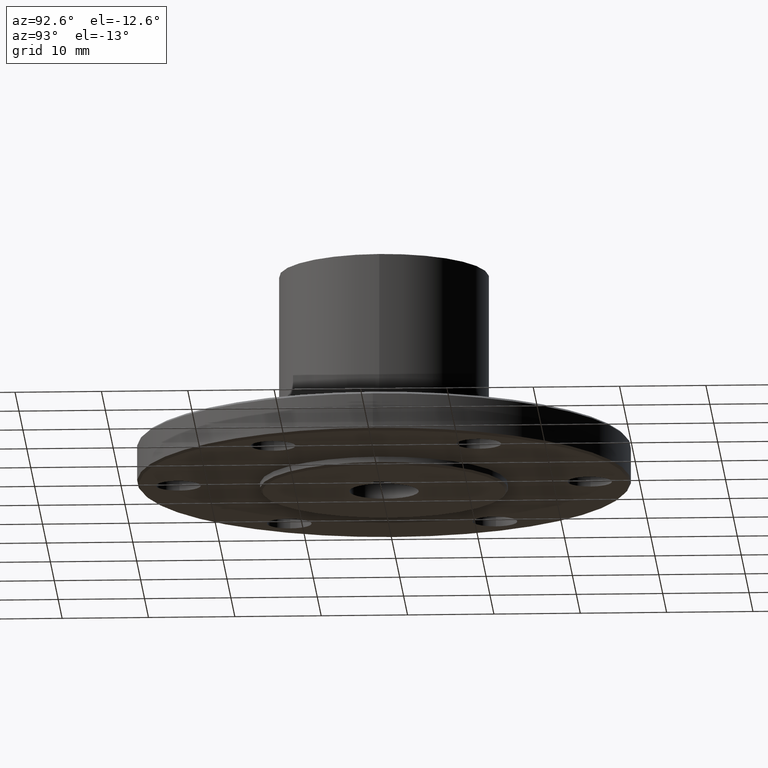
[diagram: clean part render]
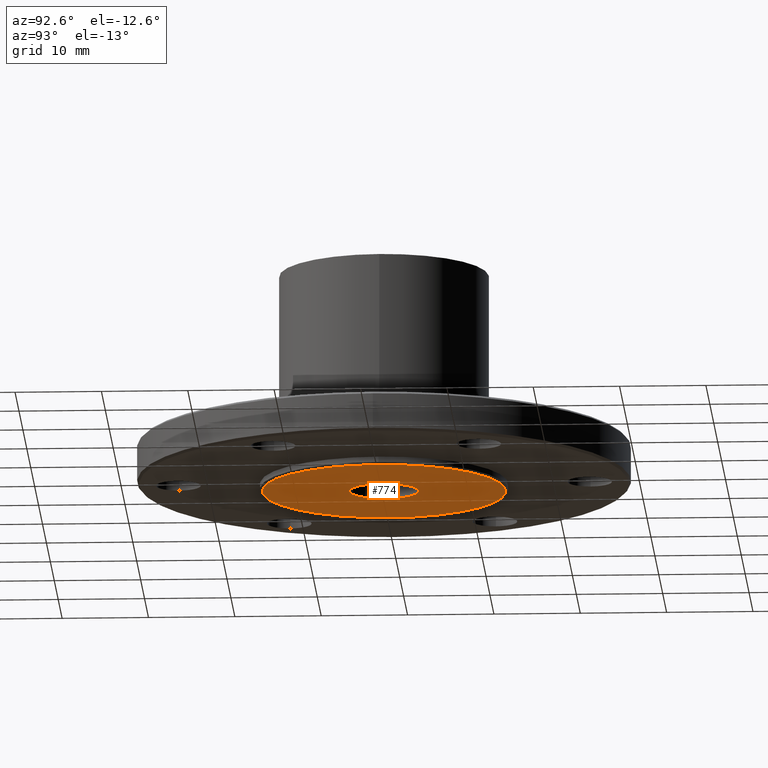
[diagram: same view with one face highlighted and labeled with its STEP entity id]
A machine part, auxiliary view. The second image highlights one B-rep face of the part: STEP entity #774.
In plain terms, the highlighted planar face has unit normal (0, 0, 1).
Its self-contained STEP definition (entity closure, byte-faithful):
#8 = DIRECTION ( 'NONE',  ( 1.000000000000000000, 0.0000000000000000000, 0.0000000000000000000 ) ) ;
#32 = DIRECTION ( 'NONE',  ( 1.000000000000000000, 0.0000000000000000000, 0.0000000000000000000 ) ) ;
#38 = DIRECTION ( 'NONE',  ( -0.0000000000000000000, -0.0000000000000000000, -1.000000000000000000 ) ) ;
#42 = CARTESIAN_POINT ( 'NONE',  ( 0.0000000000000000000, 0.0000000000000000000, 0.0000000000000000000 ) ) ;
#45 = LINE ( 'NONE', #174, #1038 ) ;
#57 = FACE_OUTER_BOUND ( 'NONE', #1188, .T. ) ;
#85 = DIRECTION ( 'NONE',  ( 1.000000000000000000, -3.731084829411996400E-016, 0.0000000000000000000 ) ) ;
#134 = VERTEX_POINT ( 'NONE', #334 ) ;
#174 = CARTESIAN_POINT ( 'NONE',  ( 0.1532383763944267200, 0.04050000000000000100, 0.0000000000000000000 ) ) ;
#176 = EDGE_CURVE ( 'NONE', #1085, #418, #612, .T. ) ;
#182 = LINE ( 'NONE', #956, #1164 ) ;
#211 = LINE ( 'NONE', #375, #724 ) ;
#229 = ORIENTED_EDGE ( 'NONE', *, *, #739, .T. ) ;
#233 = FACE_BOUND ( 'NONE', #1142, .T. ) ;
#269 = CIRCLE ( 'NONE', #798, 0.5551308118027864500 ) ;
#272 = CARTESIAN_POINT ( 'NONE',  ( 0.5551308118027864500, 0.0000000000000000000, 0.0000000000000000000 ) ) ;
#275 = VERTEX_POINT ( 'NONE', #702 ) ;
#279 = CIRCLE ( 'NONE', #690, 0.1585000000000000000 ) ;
#292 = VERTEX_POINT ( 'NONE', #302 ) ;
#302 = CARTESIAN_POINT ( 'NONE',  ( 0.1532383763944267200, 0.04050000000000000100, 0.0000000000000000000 ) ) ;
#320 = DIRECTION ( 'NONE',  ( 0.0000000000000000000, 0.0000000000000000000, 1.000000000000000000 ) ) ;
#331 = EDGE_CURVE ( 'NONE', #292, #134, #279, .T. ) ;
#334 = CARTESIAN_POINT ( 'NONE',  ( 0.1532383763944267000, -0.04049999999999998700, 0.0000000000000000000 ) ) ;
#362 = VERTEX_POINT ( 'NONE', #1028 ) ;
#375 = CARTESIAN_POINT ( 'NONE',  ( 0.1532383763944267000, -0.04049999999999998700, 0.0000000000000000000 ) ) ;
#418 = VERTEX_POINT ( 'NONE', #272 ) ;
#518 = CARTESIAN_POINT ( 'NONE',  ( 0.0000000000000000000, 0.0000000000000000000, 0.0000000000000000000 ) ) ;
#533 = ORIENTED_EDGE ( 'NONE', *, *, #1043, .T. ) ;
#582 = DIRECTION ( 'NONE',  ( -0.0000000000000000000, -0.0000000000000000000, -1.000000000000000000 ) ) ;
#612 = CIRCLE ( 'NONE', #913, 0.5551308118027864500 ) ;
#665 = CARTESIAN_POINT ( 'NONE',  ( -0.5551308118027864500, 6.859624057780910200E-017, 0.0000000000000000000 ) ) ;
#690 = AXIS2_PLACEMENT_3D ( 'NONE', #1203, #1197, #1191 ) ;
#702 = CARTESIAN_POINT ( 'NONE',  ( 0.1990000000000000100, 0.04050000000000000100, 0.0000000000000000000 ) ) ;
#724 = VECTOR ( 'NONE', #85, 39.37007874015748100 ) ;
#739 = EDGE_CURVE ( 'NONE', #418, #1085, #269, .T. ) ;
#774 = ADVANCED_FACE ( 'NONE', ( #57, #233 ), #899, .F. ) ;
#798 = AXIS2_PLACEMENT_3D ( 'NONE', #1143, #582, #8 ) ;
#835 = ORIENTED_EDGE ( 'NONE', *, *, #176, .T. ) ;
#855 = DIRECTION ( 'NONE',  ( 0.0000000000000000000, 1.000000000000000000, 0.0000000000000000000 ) ) ;
#869 = EDGE_CURVE ( 'NONE', #134, #362, #211, .T. ) ;
#897 = ORIENTED_EDGE ( 'NONE', *, *, #869, .T. ) ;
#898 = EDGE_CURVE ( 'NONE', #362, #275, #182, .T. ) ;
#899 = PLANE ( 'NONE',  #1087 ) ;
#913 = AXIS2_PLACEMENT_3D ( 'NONE', #42, #38, #32 ) ;
#956 = CARTESIAN_POINT ( 'NONE',  ( 0.1990000000000000100, 0.04050000000000000100, 0.0000000000000000000 ) ) ;
#999 = DIRECTION ( 'NONE',  ( 1.000000000000000000, 0.0000000000000000000, 0.0000000000000000000 ) ) ;
#1028 = CARTESIAN_POINT ( 'NONE',  ( 0.1990000000000000100, -0.04050000000000000100, 0.0000000000000000000 ) ) ;
#1038 = VECTOR ( 'NONE', #1128, 39.37007874015748100 ) ;
#1043 = EDGE_CURVE ( 'NONE', #275, #292, #45, .T. ) ;
#1085 = VERTEX_POINT ( 'NONE', #665 ) ;
#1087 = AXIS2_PLACEMENT_3D ( 'NONE', #518, #320, #999 ) ;
#1128 = DIRECTION ( 'NONE',  ( -1.000000000000000000, 0.0000000000000000000, 0.0000000000000000000 ) ) ;
#1142 = EDGE_LOOP ( 'NONE', ( #897, #1167, #533, #1214 ) ) ;
#1143 = CARTESIAN_POINT ( 'NONE',  ( 0.0000000000000000000, 0.0000000000000000000, 0.0000000000000000000 ) ) ;
#1164 = VECTOR ( 'NONE', #855, 39.37007874015748100 ) ;
#1167 = ORIENTED_EDGE ( 'NONE', *, *, #898, .T. ) ;
#1188 = EDGE_LOOP ( 'NONE', ( #229, #835 ) ) ;
#1191 = DIRECTION ( 'NONE',  ( 1.000000000000000000, 0.0000000000000000000, 0.0000000000000000000 ) ) ;
#1197 = DIRECTION ( 'NONE',  ( 0.0000000000000000000, 0.0000000000000000000, 1.000000000000000000 ) ) ;
#1203 = CARTESIAN_POINT ( 'NONE',  ( 0.0000000000000000000, 0.0000000000000000000, 0.0000000000000000000 ) ) ;
#1214 = ORIENTED_EDGE ( 'NONE', *, *, #331, .T. ) ;